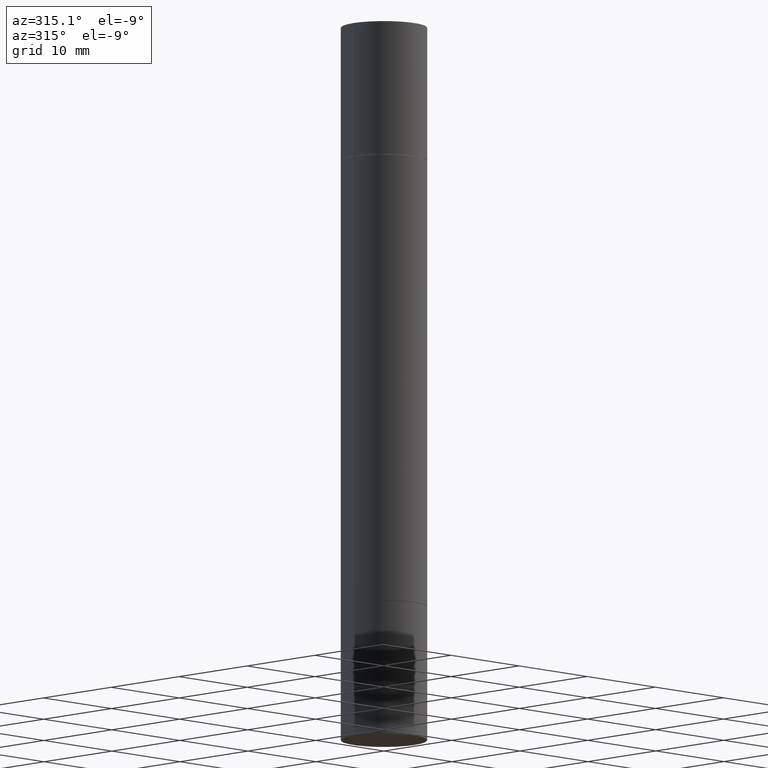
[diagram: clean part render]
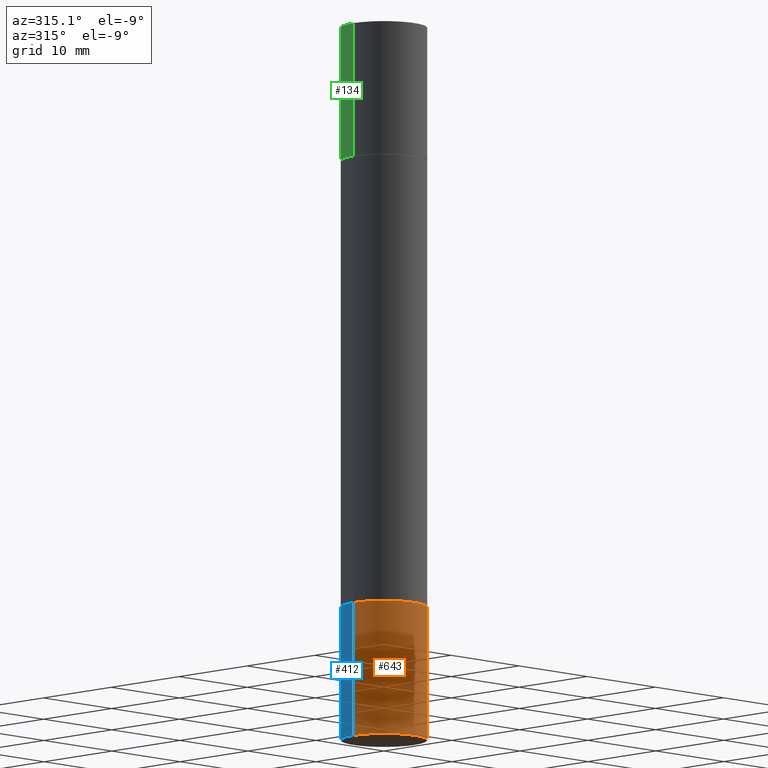
[diagram: same view with three faces highlighted in distinct colors, each labeled with its STEP entity id]
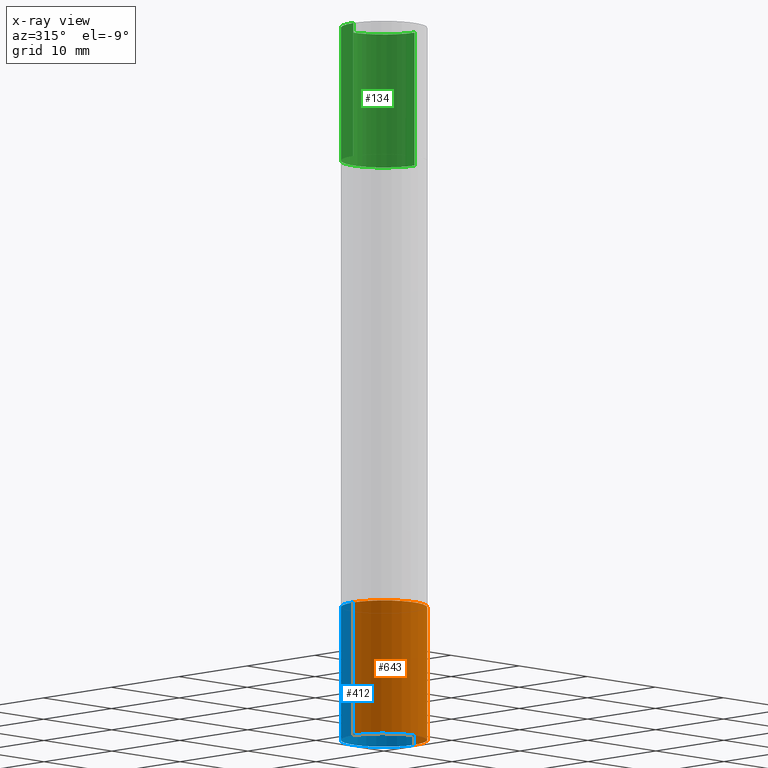
[diagram: x-ray of the same camera — body ghosted, the three highlighted faces saturated]
A machine part, auxiliary view with three faces highlighted in distinct colors.
The next image is the same camera in x-ray (body ghosted, the three faces saturated) — at least one of them is partly hidden behind the body in this view.
Their STEP definitions:

[orange] entity #643 — the highlighted cylindrical surface (partial cylindrical patch) has radius 4.4996 mm, axis along (-0, 0, 1).
#30 = ORIENTED_EDGE ( 'NONE', *, *, #590, .T. ) ;
#33 = CARTESIAN_POINT ( 'NONE',  ( 0.000000000000000000, 0.000000000000000000, 0.000000000000000000 ) ) ;
#36 = DIRECTION ( 'NONE',  ( -2.445468806185136597E-29, 3.491481338843145583E-15, 1.000000000000000000 ) ) ;
#69 = VERTEX_POINT ( 'NONE', #489 ) ;
#74 = EDGE_CURVE ( 'NONE', #103, #80, #143, .T. ) ;
#80 = VERTEX_POINT ( 'NONE', #132 ) ;
#103 = VERTEX_POINT ( 'NONE', #292 ) ;
#132 = CARTESIAN_POINT ( 'NONE',  ( -0.1771500000000000019, -8.088667383951849417E-15, -2.401599999999999735 ) ) ;
#142 = DIRECTION ( 'NONE',  ( -2.445468806185136597E-29, 3.491481338843145583E-15, 1.000000000000000000 ) ) ;
#143 = LINE ( 'NONE', #596, #291 ) ;
#149 = ORIENTED_EDGE ( 'NONE', *, *, #74, .F. ) ;
#153 = CARTESIAN_POINT ( 'NONE',  ( 0.1771500000000000019, -9.622173421717819657E-15, -2.401599999999999735 ) ) ;
#163 = CARTESIAN_POINT ( 'NONE',  ( 0.1771500000000000019, -1.237031838352122197E-15, 8.638147158322499960E-30 ) ) ;
#209 = DIRECTION ( 'NONE',  ( -2.445468806185136877E-29, 3.491481338843145188E-15, 1.000000000000000000 ) ) ;
#222 = EDGE_LOOP ( 'NONE', ( #149, #653, #30, #283 ) ) ;
#223 = FACE_OUTER_BOUND ( 'NONE', #222, .T. ) ;
#243 = DIRECTION ( 'NONE',  ( 1.000000000000000000, -6.982962677686272233E-15, 0.000000000000000000 ) ) ;
#279 = CARTESIAN_POINT ( 'NONE',  ( 7.220980290903470182E-29, -1.030964609733603853E-14, -2.952799999999999869 ) ) ;
#281 = CYLINDRICAL_SURFACE ( 'NONE', #461, 0.1771500000000000019 ) ;
#283 = ORIENTED_EDGE ( 'NONE', *, *, #420, .F. ) ;
#287 = DIRECTION ( 'NONE',  ( -2.445468806185136877E-29, 3.491481338843145188E-15, 1.000000000000000000 ) ) ;
#291 = VECTOR ( 'NONE', #287, 39.37007874015748143 ) ;
#292 = CARTESIAN_POINT ( 'NONE',  ( -0.1771500000000000019, -8.088667383951849417E-15, -2.952799999999999869 ) ) ;
#374 = AXIS2_PLACEMENT_3D ( 'NONE', #279, #36, #243 ) ;
#420 = EDGE_CURVE ( 'NONE', #80, #592, #533, .T. ) ;
#422 = CARTESIAN_POINT ( 'NONE',  ( 5.873037884934223228E-29, -8.385141583365697263E-15, -2.401599999999999735 ) ) ;
#432 = VECTOR ( 'NONE', #209, 39.37007874015748143 ) ;
#445 = LINE ( 'NONE', #163, #432 ) ;
#461 = AXIS2_PLACEMENT_3D ( 'NONE', #33, #142, #595 ) ;
#489 = CARTESIAN_POINT ( 'NONE',  ( 0.1771500000000000019, -1.154667793568816250E-14, -2.952799999999999869 ) ) ;
#515 = AXIS2_PLACEMENT_3D ( 'NONE', #422, #634, #583 ) ;
#533 = CIRCLE ( 'NONE', #515, 0.1771500000000000019 ) ;
#572 = CIRCLE ( 'NONE', #374, 0.1771500000000000019 ) ;
#579 = EDGE_CURVE ( 'NONE', #103, #69, #572, .T. ) ;
#583 = DIRECTION ( 'NONE',  ( 1.000000000000000000, -6.982962677686266711E-15, 0.000000000000000000 ) ) ;
#590 = EDGE_CURVE ( 'NONE', #69, #592, #445, .T. ) ;
#592 = VERTEX_POINT ( 'NONE', #153 ) ;
#595 = DIRECTION ( 'NONE',  ( 1.000000000000000000, -6.982962677686266711E-15, 4.876176775795935793E-29 ) ) ;
#596 = CARTESIAN_POINT ( 'NONE',  ( -0.1771500000000000019, 1.258726456399017493E-15, -8.713893512386565325E-30 ) ) ;
#634 = DIRECTION ( 'NONE',  ( -2.445468806185136597E-29, 3.491481338843145583E-15, 1.000000000000000000 ) ) ;
#643 = ADVANCED_FACE ( 'NONE', ( #223 ), #281, .T. ) ;
#653 = ORIENTED_EDGE ( 'NONE', *, *, #579, .T. ) ;

[blue] entity #412 — the highlighted cylindrical surface (partial cylindrical patch) has radius 4.4996 mm, axis along (-0, 0, 1).
#37 = ORIENTED_EDGE ( 'NONE', *, *, #590, .F. ) ;
#39 = AXIS2_PLACEMENT_3D ( 'NONE', #61, #118, #218 ) ;
#61 = CARTESIAN_POINT ( 'NONE',  ( 0.000000000000000000, 0.000000000000000000, 0.000000000000000000 ) ) ;
#69 = VERTEX_POINT ( 'NONE', #489 ) ;
#74 = EDGE_CURVE ( 'NONE', #103, #80, #143, .T. ) ;
#80 = VERTEX_POINT ( 'NONE', #132 ) ;
#103 = VERTEX_POINT ( 'NONE', #292 ) ;
#108 = CARTESIAN_POINT ( 'NONE',  ( 5.873037884934223228E-29, -8.385141583365697263E-15, -2.401599999999999735 ) ) ;
#118 = DIRECTION ( 'NONE',  ( -2.445468806185136597E-29, 3.491481338843145583E-15, 1.000000000000000000 ) ) ;
#122 = ORIENTED_EDGE ( 'NONE', *, *, #74, .T. ) ;
#132 = CARTESIAN_POINT ( 'NONE',  ( -0.1771500000000000019, -8.088667383951849417E-15, -2.401599999999999735 ) ) ;
#143 = LINE ( 'NONE', #596, #291 ) ;
#153 = CARTESIAN_POINT ( 'NONE',  ( 0.1771500000000000019, -9.622173421717819657E-15, -2.401599999999999735 ) ) ;
#163 = CARTESIAN_POINT ( 'NONE',  ( 0.1771500000000000019, -1.237031838352122197E-15, 8.638147158322499960E-30 ) ) ;
#166 = CYLINDRICAL_SURFACE ( 'NONE', #39, 0.1771500000000000019 ) ;
#172 = EDGE_LOOP ( 'NONE', ( #451, #122, #664, #37 ) ) ;
#209 = DIRECTION ( 'NONE',  ( -2.445468806185136877E-29, 3.491481338843145188E-15, 1.000000000000000000 ) ) ;
#218 = DIRECTION ( 'NONE',  ( 1.000000000000000000, -6.982962677686266711E-15, 4.876176775795935793E-29 ) ) ;
#247 = CARTESIAN_POINT ( 'NONE',  ( 7.220980290903470182E-29, -1.030964609733603853E-14, -2.952799999999999869 ) ) ;
#287 = DIRECTION ( 'NONE',  ( -2.445468806185136877E-29, 3.491481338843145188E-15, 1.000000000000000000 ) ) ;
#291 = VECTOR ( 'NONE', #287, 39.37007874015748143 ) ;
#292 = CARTESIAN_POINT ( 'NONE',  ( -0.1771500000000000019, -8.088667383951849417E-15, -2.952799999999999869 ) ) ;
#307 = DIRECTION ( 'NONE',  ( -2.445468806185136597E-29, 3.491481338843145583E-15, 1.000000000000000000 ) ) ;
#371 = FACE_OUTER_BOUND ( 'NONE', #172, .T. ) ;
#403 = DIRECTION ( 'NONE',  ( 1.000000000000000000, -6.982962677686272233E-15, 0.000000000000000000 ) ) ;
#408 = CIRCLE ( 'NONE', #644, 0.1771500000000000019 ) ;
#412 = ADVANCED_FACE ( 'NONE', ( #371 ), #166, .T. ) ;
#432 = VECTOR ( 'NONE', #209, 39.37007874015748143 ) ;
#445 = LINE ( 'NONE', #163, #432 ) ;
#451 = ORIENTED_EDGE ( 'NONE', *, *, #525, .T. ) ;
#489 = CARTESIAN_POINT ( 'NONE',  ( 0.1771500000000000019, -1.154667793568816250E-14, -2.952799999999999869 ) ) ;
#525 = EDGE_CURVE ( 'NONE', #69, #103, #408, .T. ) ;
#552 = DIRECTION ( 'NONE',  ( -2.445468806185136597E-29, 3.491481338843145583E-15, 1.000000000000000000 ) ) ;
#558 = AXIS2_PLACEMENT_3D ( 'NONE', #108, #307, #575 ) ;
#575 = DIRECTION ( 'NONE',  ( 1.000000000000000000, -6.982962677686266711E-15, 0.000000000000000000 ) ) ;
#590 = EDGE_CURVE ( 'NONE', #69, #592, #445, .T. ) ;
#592 = VERTEX_POINT ( 'NONE', #153 ) ;
#596 = CARTESIAN_POINT ( 'NONE',  ( -0.1771500000000000019, 1.258726456399017493E-15, -8.713893512386565325E-30 ) ) ;
#615 = EDGE_CURVE ( 'NONE', #592, #80, #620, .T. ) ;
#620 = CIRCLE ( 'NONE', #558, 0.1771500000000000019 ) ;
#644 = AXIS2_PLACEMENT_3D ( 'NONE', #247, #552, #403 ) ;
#664 = ORIENTED_EDGE ( 'NONE', *, *, #615, .F. ) ;

[green] entity #134 — the highlighted cylindrical surface (partial cylindrical patch) has radius 4.4996 mm, axis along (-0, -0, -1).
#17 = AXIS2_PLACEMENT_3D ( 'NONE', #554, #494, #665 ) ;
#25 = VERTEX_POINT ( 'NONE', #266 ) ;
#75 = CIRCLE ( 'NONE', #460, 0.1771500000000000019 ) ;
#79 = DIRECTION ( 'NONE',  ( 2.445468806185136597E-29, 3.492890411551752677E-15, 1.000000000000000000 ) ) ;
#86 = EDGE_CURVE ( 'NONE', #135, #387, #194, .T. ) ;
#88 = CARTESIAN_POINT ( 'NONE',  ( -0.1771500000000000019, 2.547769778285537851E-16, 5.463695987328559963E-16 ) ) ;
#91 = VERTEX_POINT ( 'NONE', #656 ) ;
#115 = DIRECTION ( 'NONE',  ( 2.445468806185136597E-29, 3.492890411551752677E-15, 1.000000000000000000 ) ) ;
#134 = ADVANCED_FACE ( 'NONE', ( #435 ), #397, .T. ) ;
#135 = VERTEX_POINT ( 'NONE', #88 ) ;
#140 = DIRECTION ( 'NONE',  ( 1.000000000000000000, -6.982962677686266711E-15, 0.000000000000000000 ) ) ;
#184 = CARTESIAN_POINT ( 'NONE',  ( -0.1771500000000000019, -9.096389231977797770E-15, -2.952799999999998981 ) ) ;
#192 = CARTESIAN_POINT ( 'NONE',  ( 5.873037884934223228E-29, -1.923200839900336120E-15, -0.5511999999999995792 ) ) ;
#194 = LINE ( 'NONE', #184, #487 ) ;
#196 = ORIENTED_EDGE ( 'NONE', *, *, #344, .T. ) ;
#219 = EDGE_CURVE ( 'NONE', #25, #135, #75, .T. ) ;
#266 = CARTESIAN_POINT ( 'NONE',  ( 0.1771500000000000019, -1.234951483405132701E-15, 5.463695987328526437E-16 ) ) ;
#301 = DIRECTION ( 'NONE',  ( 1.000000000000000000, -6.982962677686266711E-15, 0.000000000000000000 ) ) ;
#317 = ORIENTED_EDGE ( 'NONE', *, *, #86, .F. ) ;
#344 = EDGE_CURVE ( 'NONE', #25, #91, #411, .T. ) ;
#368 = CARTESIAN_POINT ( 'NONE',  ( -0.1771500000000000019, 2.547769778285537851E-16, -0.5511999999999995792 ) ) ;
#382 = AXIS2_PLACEMENT_3D ( 'NONE', #192, #79, #140 ) ;
#387 = VERTEX_POINT ( 'NONE', #368 ) ;
#397 = CYLINDRICAL_SURFACE ( 'NONE', #17, 0.1771500000000000019 ) ;
#411 = LINE ( 'NONE', #511, #557 ) ;
#415 = DIRECTION ( 'NONE',  ( -2.445468806185136877E-29, -3.492890411551753071E-15, -1.000000000000000000 ) ) ;
#435 = FACE_OUTER_BOUND ( 'NONE', #484, .T. ) ;
#460 = AXIS2_PLACEMENT_3D ( 'NONE', #516, #115, #301 ) ;
#463 = ORIENTED_EDGE ( 'NONE', *, *, #569, .T. ) ;
#478 = CIRCLE ( 'NONE', #382, 0.1771500000000000019 ) ;
#484 = EDGE_LOOP ( 'NONE', ( #317, #600, #196, #463 ) ) ;
#487 = VECTOR ( 'NONE', #599, 39.37007874015748143 ) ;
#494 = DIRECTION ( 'NONE',  ( -2.445468806185136597E-29, -3.492890411551752677E-15, -1.000000000000000000 ) ) ;
#511 = CARTESIAN_POINT ( 'NONE',  ( 0.1771500000000000019, -1.154875829063514805E-14, -2.952799999999998981 ) ) ;
#516 = CARTESIAN_POINT ( 'NONE',  ( 7.220980290903470182E-29, 2.080354946989631982E-18, 5.463695987328526437E-16 ) ) ;
#554 = CARTESIAN_POINT ( 'NONE',  ( 0.000000000000000000, -1.031172645228302408E-14, -2.952799999999998981 ) ) ;
#557 = VECTOR ( 'NONE', #415, 39.37007874015748143 ) ;
#569 = EDGE_CURVE ( 'NONE', #91, #387, #478, .T. ) ;
#599 = DIRECTION ( 'NONE',  ( -2.445468806185136877E-29, -3.492890411551753071E-15, -1.000000000000000000 ) ) ;
#600 = ORIENTED_EDGE ( 'NONE', *, *, #219, .F. ) ;
#656 = CARTESIAN_POINT ( 'NONE',  ( 0.1771500000000000019, -3.160232678252458120E-15, -0.5511999999999995792 ) ) ;
#665 = DIRECTION ( 'NONE',  ( 1.000000000000000000, -6.982962677686272233E-15, 0.000000000000000000 ) ) ;